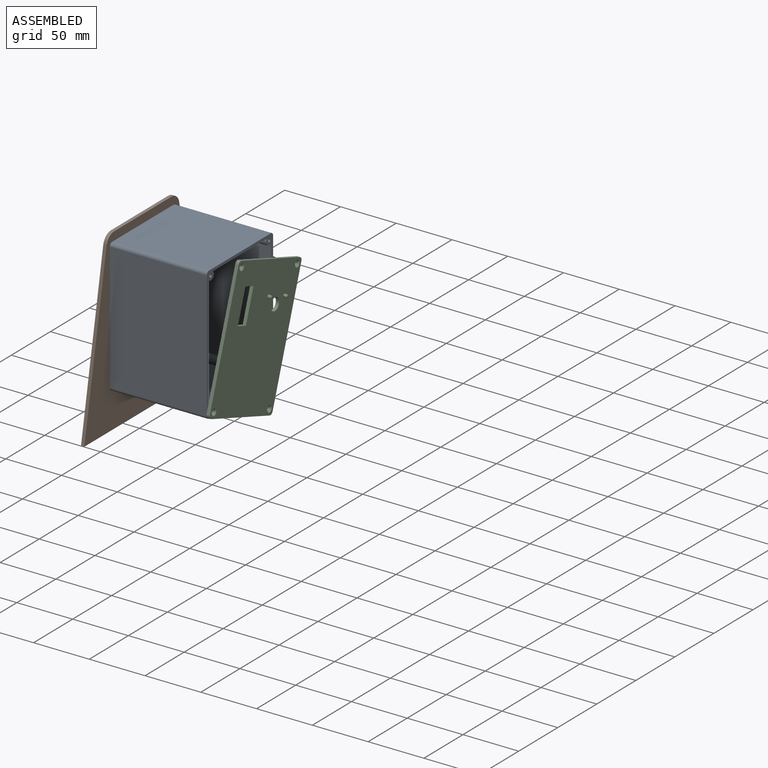
[diagram: assembled view]
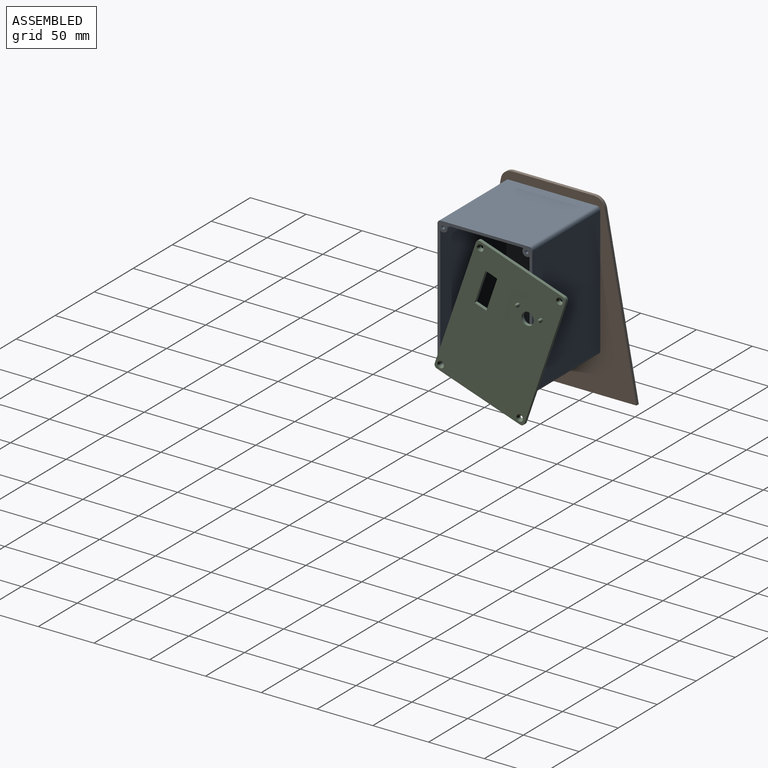
[diagram: assembled view, second angle]
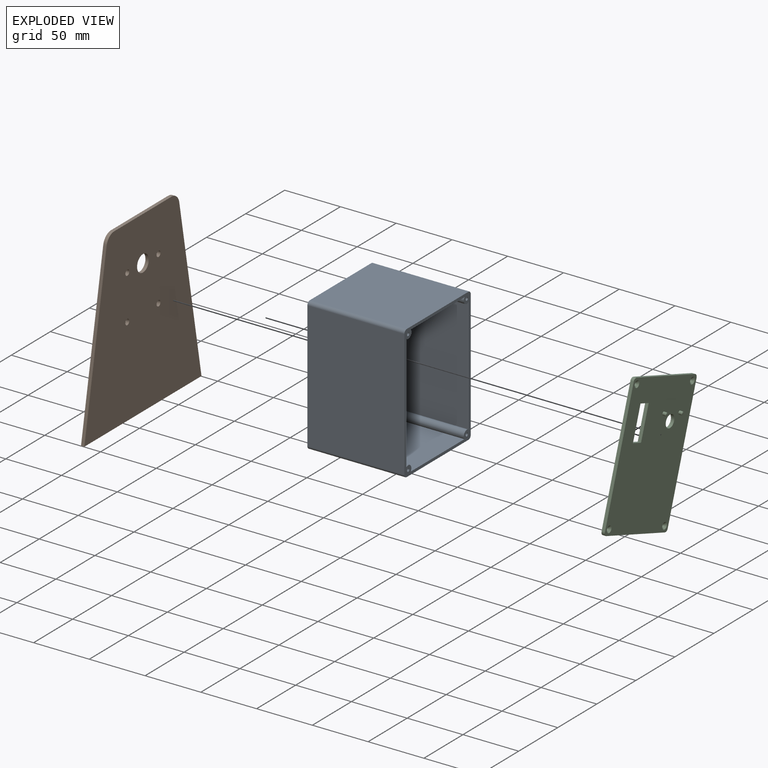
[diagram: exploded view]
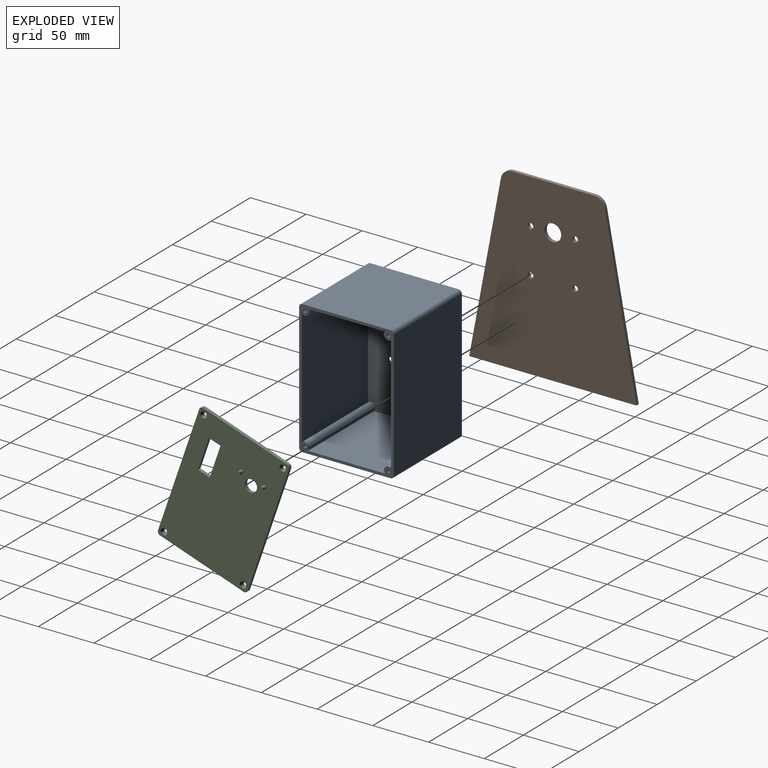
[diagram: exploded view, second angle]
ASSEMBLY  parts=3 mates=2
PART A: 32 faces, bbox 120x85x87 mm
  f0: cylinder r=1.45mm len=82mm, axis (0,0,-1), area 747.1mm2, adj f1,f2
  f1: plane 2.9x2.9mm, normal (0,0,-1), area 6.6mm2, adj f0
  f2: plane 120x85mm, normal (0,0,-1), area 1113.2mm2, adj f0,f4,f6,f8,f10,f11,f12,f13
  f3: plane 2.9x2.9mm, normal (0,0,-1), area 6.6mm2, adj f4
  f4: cylinder r=1.45mm len=82mm, axis (0,0,-1), area 747.1mm2, adj f2,f3
  f5: plane 2.9x2.9mm, normal (0,0,-1), area 6.6mm2, adj f6
  f6: cylinder r=1.45mm len=82mm, axis (0,0,-1), area 747.1mm2, adj f2,f5
  f7: plane 2.9x2.9mm, normal (0,0,-1), area 6.6mm2, adj f8
  f8: cylinder r=1.45mm len=82mm, axis (0,0,-1), area 747.1mm2, adj f2,f7
  f9: plane 120x85mm, normal (0,0,1), area 9859.3mm2, adj f10,f11,f12,f13,f14,f15,f16,f17
  f10: cylinder r=3mm len=87mm, axis (0,0,1), area 410mm2, adj f2,f9,f14,f16
  f11: cylinder r=3mm len=87mm, axis (0,0,-1), area 410mm2, adj f2,f9,f13,f14
  f12: cylinder r=3mm len=87mm, axis (0,0,1), area 410mm2, adj f2,f9,f13,f17
  f13: plane 87x79mm, normal (1,0,0), area 6873mm2, adj f2,f9,f11,f12
  f14: plane 114x87mm, normal (0,-1,0), area 9918mm2, adj f2,f9,f10,f11
  f15: cylinder r=3mm len=87mm, axis (0,0,-1), area 410mm2, adj f2,f9,f16,f17
  f16: plane 87x79mm, normal (-1,0,0), area 6873mm2, adj f2,f9,f10,f15
  f17: plane 114x87mm, normal (0,1,0), area 9918mm2, adj f2,f9,f12,f15
  f18: plane 115x80mm, normal (0,0,-1), area 8719.6mm2, adj f19,f20,f21,f22,f23,f24,f25,f26
  f19: cylinder r=3.95mm len=84.5mm, axis (0,0,-1), area 981.8mm2, adj f2,f18,f23,f24
  f20: cylinder r=3.95mm len=84.5mm, axis (0,0,-1), area 981.8mm2, adj f2,f18,f23,f26
  f21: cylinder r=3.95mm len=84.5mm, axis (0,0,-1), area 981.8mm2, adj f2,f18,f24,f25
  f22: cylinder r=3.95mm len=84.5mm, axis (0,0,-1), area 981.8mm2, adj f2,f18,f25,f26
  f23: plane 84.5x68.88mm, normal (-1,0,0), area 5820.7mm2, adj f2,f18,f19,f20
  f24: plane 103.88x84.5mm, normal (0,1,0), area 8778.2mm2, adj f2,f18,f19,f21
  f25: plane 84.5x68.88mm, normal (1,0,0), area 5820.7mm2, adj f2,f18,f21,f22
  f26: plane 103.88x84.5mm, normal (0,-1,0), area 8778.2mm2, adj f2,f18,f20,f22
  f27: cylinder r=2.5mm len=5mm, axis (0,0,1), area 39.3mm2, adj f9,f18
  f28: cylinder r=9mm len=18mm, axis (0,0,1), area 141.4mm2, adj f9,f18
  f29: cylinder r=2.5mm len=5mm, axis (0,0,1), area 39.3mm2, adj f9,f18
  f30: cylinder r=2.5mm len=5mm, axis (0,0,1), area 39.3mm2, adj f9,f18
  f31: cylinder r=2.5mm len=5mm, axis (0,0,1), area 39.3mm2, adj f9,f18
PART B: 13 faces, bbox 3x150x160 mm
  f0: plane 73.4x3mm, normal (0,0,1), area 220.2mm2, adj f9,f10,f11,f12
  f1: plane 151.84x28.47mm, normal (0,-0.98,0.18), area 463.5mm2, adj f2,f9,f10,f11
  f2: plane 150x3mm, normal (0,0,-1), area 450mm2, adj f1,f8,f9,f10
  f3: cylinder r=2.5mm len=5mm, axis (-1,0,0), area 47.1mm2, adj f9,f10
  f4: cylinder r=2.5mm len=5mm, axis (-1,0,0), area 47.1mm2, adj f9,f10
  f5: cylinder r=7.5mm len=15mm, axis (-1,0,0), area 141.4mm2, adj f9,f10
  f6: cylinder r=2.5mm len=5mm, axis (-1,0,0), area 47.1mm2, adj f9,f10
  f7: cylinder r=2.5mm len=5mm, axis (-1,0,0), area 47.1mm2, adj f9,f10
  f8: plane 151.84x28.47mm, normal (0,0.98,0.18), area 463.5mm2, adj f2,f9,f10,f12
  f9: plane 160x150mm, normal (1,0,0), area 18917.3mm2, adj f0,f1,f2,f3,f4,f5,f6,f7
  f10: plane 160x150mm, normal (-1,0,0), area 18917.3mm2, adj f0,f1,f2,f3,f4,f5,f6,f7
  f11: cylinder r=10mm len=9.83mm, axis (1,0,0), area 41.6mm2, adj f0,f1,f9,f10
  f12: cylinder r=10mm len=9.83mm, axis (-1,0,0), area 41.6mm2, adj f0,f8,f9,f10
PART C: 29 faces, bbox 120x85x6 mm
  f0: plane 120x85mm, normal (0,0,-1), area 9643.7mm2, adj f6,f7,f8,f9,f10,f11,f12,f13
  f1: plane 120x85mm, normal (0,0,1), area 9740.8mm2, adj f2,f3,f4,f5,f6,f7,f8,f9
  f2: cylinder r=1.45mm len=2.9mm, axis (0,0,-1), area 13.7mm2, adj f1,f16
  f3: cylinder r=1.45mm len=2.9mm, axis (0,0,-1), area 13.7mm2, adj f1,f15
  f4: cylinder r=1.45mm len=2.9mm, axis (0,0,-1), area 13.7mm2, adj f1,f14
  f5: cylinder r=1.45mm len=2.9mm, axis (0,0,-1), area 13.7mm2, adj f1,f17
  f6: cylinder r=3mm len=3mm, axis (0,0,1), area 14.1mm2, adj f0,f1,f10,f12
  f7: cylinder r=3mm len=3mm, axis (0,0,-1), area 14.1mm2, adj f0,f1,f9,f10
  f8: cylinder r=3mm len=3mm, axis (0,0,1), area 14.1mm2, adj f0,f1,f9,f13
  f9: plane 79x3mm, normal (1,0,0), area 237mm2, adj f0,f1,f7,f8
  f10: plane 114x3mm, normal (0,-1,0), area 342mm2, adj f0,f1,f6,f7
  f11: cylinder r=3mm len=3mm, axis (0,0,-1), area 14.1mm2, adj f0,f1,f12,f13
  f12: plane 79x3mm, normal (-1,0,0), area 237mm2, adj f0,f1,f6,f11
  f13: plane 114x3mm, normal (0,1,0), area 342mm2, adj f0,f1,f8,f11
  f14: cone r=1.45mm half-angle=45deg, axis (0,0,-1), area 29.3mm2, adj f0,f4
  f15: cone r=1.45mm half-angle=45deg, axis (0,0,-1), area 29.3mm2, adj f0,f3
  f16: cone r=1.45mm half-angle=45deg, axis (0,0,-1), area 29.3mm2, adj f0,f2
  f17: cone r=1.45mm half-angle=45deg, axis (0,0,-1), area 29.3mm2, adj f0,f5
  f18: cylinder r=5.5mm len=11mm, axis (0,0,-1), area 103.7mm2, adj f0,f1
  f19: plane 30x3mm, normal (0,1,0), area 90mm2, adj f0,f1,f20,f22
  f20: plane 11x3mm, normal (1,0,0), area 33mm2, adj f0,f1,f19,f21
  f21: plane 30x3mm, normal (0,-1,0), area 90mm2, adj f0,f1,f20,f22
  f22: plane 11x3mm, normal (-1,0,0), area 33mm2, adj f0,f1,f19,f21
  f23: cylinder r=1.5mm len=3mm, axis (0,0,1), area 18.8mm2, adj f0,f28
  f24: plane 1x1mm, normal (0,0,-1), area 0.8mm2, adj f28
  f25: cylinder r=1.5mm len=3mm, axis (0,0,1), area 18.8mm2, adj f0,f27
  f26: plane 1x1mm, normal (0,0,-1), area 0.8mm2, adj f27
  f27: torus R=0.5mm, axis (0,0,-1), area 11.2mm2, adj f25,f26
  f28: torus R=0.5mm, axis (0,0,-1), area 11.2mm2, adj f23,f24
PLACE A rot(axis=(-0.71,0,0.71),180deg) t=(-20.34,11.57,122.96)mm
PLACE B t=(-113.34,-30.93,-29.54)mm fixed
PLACE C rot(axis=(0.7,-0.12,-0.7),166.7deg) t=(-20.34,44.48,90.87)mm
MATE revolute A.f4 <-> C.f5  axis (1,0,0) through (-23.34,-68.43,7.96)mm
MATE fastened A.f28 <-> B.f5  axis (-1,0,0) through (-110.34,-30.93,90.46)mm
